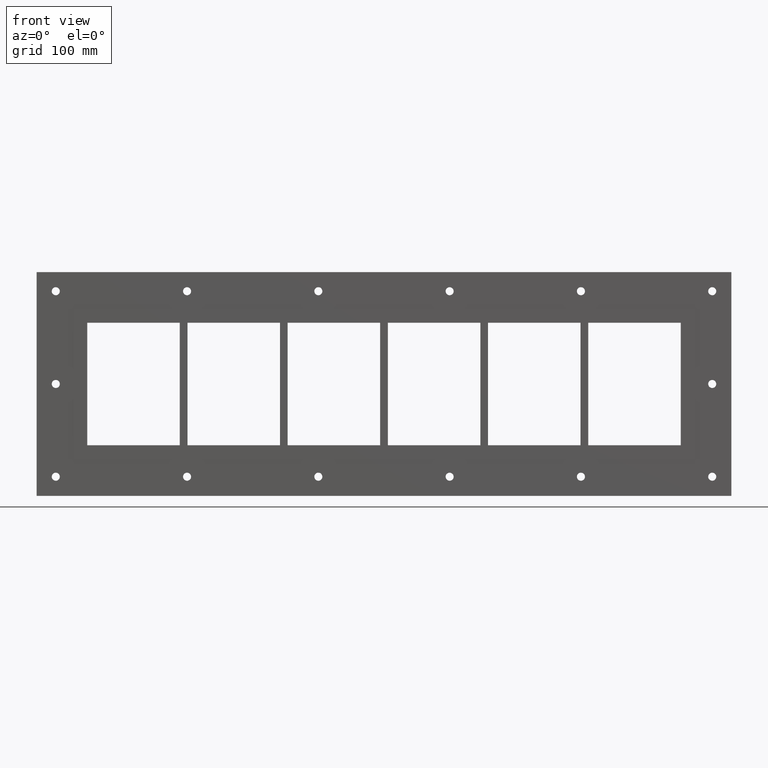
[diagram: clean part render]
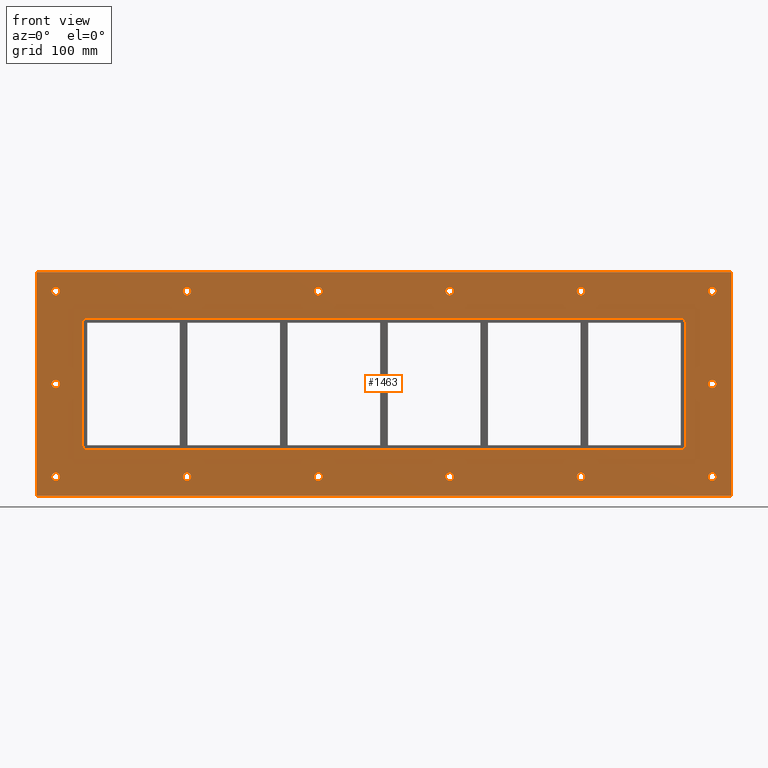
[diagram: same view with one face highlighted and labeled with its STEP entity id]
A machine part, front view. The second image highlights one B-rep face of the part: STEP entity #1463.
In plain terms, the highlighted planar face has unit normal (0, 1, 0).
Its self-contained STEP definition (entity closure, byte-faithful):
#84=CARTESIAN_POINT('',(-422.25000000000034,0.0,-120.75));
#85=VERTEX_POINT('',#84);
#86=CARTESIAN_POINT('',(-427.50000000000034,0.0,-120.75));
#87=DIRECTION('',(0.0,1.0,0.0));
#88=DIRECTION('',(1.0,0.0,0.0));
#89=AXIS2_PLACEMENT_3D('',#86,#87,#88);
#90=CIRCLE('',#89,5.25);
#91=EDGE_CURVE('',#85,#85,#90,.T.);
#112=CARTESIAN_POINT('',(432.74999999999966,0.0,0.050000000000008));
#113=VERTEX_POINT('',#112);
#114=CARTESIAN_POINT('',(427.49999999999966,0.0,0.050000000000008));
#115=DIRECTION('',(0.0,1.0,0.0));
#116=DIRECTION('',(1.0,0.0,0.0));
#117=AXIS2_PLACEMENT_3D('',#114,#115,#116);
#118=CIRCLE('',#117,5.25);
#119=EDGE_CURVE('',#113,#113,#118,.T.);
#140=CARTESIAN_POINT('',(-422.25000000000034,0.0,0.050000000000008));
#141=VERTEX_POINT('',#140);
#142=CARTESIAN_POINT('',(-427.50000000000034,0.0,0.050000000000008));
#143=DIRECTION('',(0.0,1.0,0.0));
#144=DIRECTION('',(1.0,0.0,0.0));
#145=AXIS2_PLACEMENT_3D('',#142,#143,#144);
#146=CIRCLE('',#145,5.25);
#147=EDGE_CURVE('',#141,#141,#146,.T.);
#168=CARTESIAN_POINT('',(-251.25000000000043,0.0,120.85000000000001));
#169=VERTEX_POINT('',#168);
#170=CARTESIAN_POINT('',(-256.5000000000004,0.0,120.85000000000001));
#171=DIRECTION('',(0.0,1.0,0.0));
#172=DIRECTION('',(1.0,0.0,0.0));
#173=AXIS2_PLACEMENT_3D('',#170,#171,#172);
#174=CIRCLE('',#173,5.25);
#175=EDGE_CURVE('',#169,#169,#174,.T.);
#196=CARTESIAN_POINT('',(-251.25000000000034,0.0,-120.75));
#197=VERTEX_POINT('',#196);
#198=CARTESIAN_POINT('',(-256.50000000000034,0.0,-120.75));
#199=DIRECTION('',(0.0,1.0,0.0));
#200=DIRECTION('',(1.0,0.0,0.0));
#201=AXIS2_PLACEMENT_3D('',#198,#199,#200);
#202=CIRCLE('',#201,5.25);
#203=EDGE_CURVE('',#197,#197,#202,.T.);
#224=CARTESIAN_POINT('',(-80.250000000000412,0.0,120.85000000000001));
#225=VERTEX_POINT('',#224);
#226=CARTESIAN_POINT('',(-85.500000000000398,0.0,120.85000000000001));
#227=DIRECTION('',(0.0,1.0,0.0));
#228=DIRECTION('',(1.0,0.0,0.0));
#229=AXIS2_PLACEMENT_3D('',#226,#227,#228);
#230=CIRCLE('',#229,5.25);
#231=EDGE_CURVE('',#225,#225,#230,.T.);
#252=CARTESIAN_POINT('',(-80.250000000000341,0.0,-120.75));
#253=VERTEX_POINT('',#252);
#254=CARTESIAN_POINT('',(-85.500000000000327,0.0,-120.75));
#255=DIRECTION('',(0.0,1.0,0.0));
#256=DIRECTION('',(1.0,0.0,0.0));
#257=AXIS2_PLACEMENT_3D('',#254,#255,#256);
#258=CIRCLE('',#257,5.25);
#259=EDGE_CURVE('',#253,#253,#258,.T.);
#280=CARTESIAN_POINT('',(90.749999999999602,0.0,120.85000000000001));
#281=VERTEX_POINT('',#280);
#282=CARTESIAN_POINT('',(85.499999999999616,0.0,120.85000000000001));
#283=DIRECTION('',(0.0,1.0,0.0));
#284=DIRECTION('',(1.0,0.0,0.0));
#285=AXIS2_PLACEMENT_3D('',#282,#283,#284);
#286=CIRCLE('',#285,5.25);
#287=EDGE_CURVE('',#281,#281,#286,.T.);
#308=CARTESIAN_POINT('',(90.749999999999673,0.0,-120.75));
#309=VERTEX_POINT('',#308);
#310=CARTESIAN_POINT('',(85.499999999999687,0.0,-120.75));
#311=DIRECTION('',(0.0,1.0,0.0));
#312=DIRECTION('',(1.0,0.0,0.0));
#313=AXIS2_PLACEMENT_3D('',#310,#311,#312);
#314=CIRCLE('',#313,5.25);
#315=EDGE_CURVE('',#309,#309,#314,.T.);
#336=CARTESIAN_POINT('',(261.7499999999996,0.0,120.85000000000001));
#337=VERTEX_POINT('',#336);
#338=CARTESIAN_POINT('',(256.49999999999966,0.0,120.85000000000001));
#339=DIRECTION('',(0.0,1.0,0.0));
#340=DIRECTION('',(1.0,0.0,0.0));
#341=AXIS2_PLACEMENT_3D('',#338,#339,#340);
#342=CIRCLE('',#341,5.25);
#343=EDGE_CURVE('',#337,#337,#342,.T.);
#364=CARTESIAN_POINT('',(261.74999999999966,0.0,-120.75));
#365=VERTEX_POINT('',#364);
#366=CARTESIAN_POINT('',(256.49999999999972,0.0,-120.75));
#367=DIRECTION('',(0.0,1.0,0.0));
#368=DIRECTION('',(1.0,0.0,0.0));
#369=AXIS2_PLACEMENT_3D('',#366,#367,#368);
#370=CIRCLE('',#369,5.25);
#371=EDGE_CURVE('',#365,#365,#370,.T.);
#392=CARTESIAN_POINT('',(432.74999999999972,0.0,-120.75));
#393=VERTEX_POINT('',#392);
#394=CARTESIAN_POINT('',(427.49999999999972,0.0,-120.75));
#395=DIRECTION('',(0.0,1.0,0.0));
#396=DIRECTION('',(1.0,0.0,0.0));
#397=AXIS2_PLACEMENT_3D('',#394,#395,#396);
#398=CIRCLE('',#397,5.25);
#399=EDGE_CURVE('',#393,#393,#398,.T.);
#420=CARTESIAN_POINT('',(-422.25000000000034,0.0,120.85000000000001));
#421=VERTEX_POINT('',#420);
#422=CARTESIAN_POINT('',(-427.50000000000034,0.0,120.85000000000001));
#423=DIRECTION('',(0.0,1.0,0.0));
#424=DIRECTION('',(1.0,0.0,0.0));
#425=AXIS2_PLACEMENT_3D('',#422,#423,#424);
#426=CIRCLE('',#425,5.25);
#427=EDGE_CURVE('',#421,#421,#426,.T.);
#448=CARTESIAN_POINT('',(432.74999999999966,0.0,120.85000000000001));
#449=VERTEX_POINT('',#448);
#450=CARTESIAN_POINT('',(427.49999999999966,0.0,120.85000000000001));
#451=DIRECTION('',(0.0,1.0,0.0));
#452=DIRECTION('',(1.0,0.0,0.0));
#453=AXIS2_PLACEMENT_3D('',#450,#451,#452);
#454=CIRCLE('',#453,5.25);
#455=EDGE_CURVE('',#449,#449,#454,.T.);
#1312=CARTESIAN_POINT('',(-3.563106E-014,0.0,7.126212E-015));
#1313=DIRECTION('',(0.0,1.0,0.0));
#1314=DIRECTION('',(0.0,0.0,1.0));
#1315=AXIS2_PLACEMENT_3D('',#1312,#1313,#1314);
#1316=PLANE('',#1315);
#1317=CARTESIAN_POINT('',(-452.50000000000011,0.0,145.75));
#1318=VERTEX_POINT('',#1317);
#1319=CARTESIAN_POINT('',(452.50000000000006,0.0,145.75));
#1320=VERTEX_POINT('',#1319);
#1321=CARTESIAN_POINT('',(-452.50000000000011,0.0,145.75));
#1322=DIRECTION('',(1.0,0.0,0.0));
#1323=VECTOR('',#1322,905.00000000000023);
#1324=LINE('',#1321,#1323);
#1325=EDGE_CURVE('',#1318,#1320,#1324,.T.);
#1326=ORIENTED_EDGE('',*,*,#1325,.F.);
#1327=CARTESIAN_POINT('',(-452.50000000000011,0.0,-145.75));
#1328=VERTEX_POINT('',#1327);
#1329=CARTESIAN_POINT('',(-452.50000000000011,0.0,-145.75));
#1330=DIRECTION('',(0.0,0.0,1.0));
#1331=VECTOR('',#1330,291.5);
#1332=LINE('',#1329,#1331);
#1333=EDGE_CURVE('',#1328,#1318,#1332,.T.);
#1334=ORIENTED_EDGE('',*,*,#1333,.F.);
#1335=CARTESIAN_POINT('',(452.50000000000006,0.0,-145.75));
#1336=VERTEX_POINT('',#1335);
#1337=CARTESIAN_POINT('',(452.50000000000006,0.0,-145.75));
#1338=DIRECTION('',(-1.0,0.0,0.0));
#1339=VECTOR('',#1338,905.00000000000023);
#1340=LINE('',#1337,#1339);
#1341=EDGE_CURVE('',#1336,#1328,#1340,.T.);
#1342=ORIENTED_EDGE('',*,*,#1341,.F.);
#1343=CARTESIAN_POINT('',(452.50000000000006,0.0,145.75));
#1344=DIRECTION('',(0.0,0.0,-1.0));
#1345=VECTOR('',#1344,291.5);
#1346=LINE('',#1343,#1345);
#1347=EDGE_CURVE('',#1320,#1336,#1346,.T.);
#1348=ORIENTED_EDGE('',*,*,#1347,.F.);
#1349=EDGE_LOOP('',(#1326,#1334,#1342,#1348));
#1350=FACE_OUTER_BOUND('',#1349,.T.);
#1351=ORIENTED_EDGE('',*,*,#91,.T.);
#1352=EDGE_LOOP('',(#1351));
#1353=FACE_BOUND('',#1352,.T.);
#1354=ORIENTED_EDGE('',*,*,#119,.T.);
#1355=EDGE_LOOP('',(#1354));
#1356=FACE_BOUND('',#1355,.T.);
#1357=ORIENTED_EDGE('',*,*,#147,.T.);
#1358=EDGE_LOOP('',(#1357));
#1359=FACE_BOUND('',#1358,.T.);
#1360=ORIENTED_EDGE('',*,*,#175,.T.);
#1361=EDGE_LOOP('',(#1360));
#1362=FACE_BOUND('',#1361,.T.);
#1363=ORIENTED_EDGE('',*,*,#203,.T.);
#1364=EDGE_LOOP('',(#1363));
#1365=FACE_BOUND('',#1364,.T.);
#1366=ORIENTED_EDGE('',*,*,#231,.T.);
#1367=EDGE_LOOP('',(#1366));
#1368=FACE_BOUND('',#1367,.T.);
#1369=ORIENTED_EDGE('',*,*,#259,.T.);
#1370=EDGE_LOOP('',(#1369));
#1371=FACE_BOUND('',#1370,.T.);
#1372=ORIENTED_EDGE('',*,*,#287,.T.);
#1373=EDGE_LOOP('',(#1372));
#1374=FACE_BOUND('',#1373,.T.);
#1375=ORIENTED_EDGE('',*,*,#315,.T.);
#1376=EDGE_LOOP('',(#1375));
#1377=FACE_BOUND('',#1376,.T.);
#1378=ORIENTED_EDGE('',*,*,#343,.T.);
#1379=EDGE_LOOP('',(#1378));
#1380=FACE_BOUND('',#1379,.T.);
#1381=ORIENTED_EDGE('',*,*,#371,.T.);
#1382=EDGE_LOOP('',(#1381));
#1383=FACE_BOUND('',#1382,.T.);
#1384=ORIENTED_EDGE('',*,*,#399,.T.);
#1385=EDGE_LOOP('',(#1384));
#1386=FACE_BOUND('',#1385,.T.);
#1387=ORIENTED_EDGE('',*,*,#427,.T.);
#1388=EDGE_LOOP('',(#1387));
#1389=FACE_BOUND('',#1388,.T.);
#1390=ORIENTED_EDGE('',*,*,#455,.T.);
#1391=EDGE_LOOP('',(#1390));
#1392=FACE_BOUND('',#1391,.T.);
#1393=CARTESIAN_POINT('',(-392.50000000000006,0.0,-79.750000000000028));
#1394=VERTEX_POINT('',#1393);
#1395=CARTESIAN_POINT('',(-386.50000000000006,0.0,-85.750000000000028));
#1396=VERTEX_POINT('',#1395);
#1397=CARTESIAN_POINT('',(-386.50000000000006,0.0,-79.750000000000028));
#1398=DIRECTION('',(0.0,-1.0,0.0));
#1399=DIRECTION('',(-0.707106781186544,0.0,-0.707106781186551));
#1400=AXIS2_PLACEMENT_3D('',#1397,#1398,#1399);
#1401=CIRCLE('',#1400,6.0);
#1402=EDGE_CURVE('',#1394,#1396,#1401,.T.);
#1403=ORIENTED_EDGE('',*,*,#1402,.F.);
#1404=CARTESIAN_POINT('',(-392.50000000000006,0.0,79.750000000000028));
#1405=VERTEX_POINT('',#1404);
#1406=CARTESIAN_POINT('',(-392.50000000000006,0.0,79.750000000000014));
#1407=DIRECTION('',(0.0,0.0,-1.0));
#1408=VECTOR('',#1407,159.50000000000006);
#1409=LINE('',#1406,#1408);
#1410=EDGE_CURVE('',#1405,#1394,#1409,.T.);
#1411=ORIENTED_EDGE('',*,*,#1410,.F.);
#1412=CARTESIAN_POINT('',(-386.50000000000006,0.0,85.750000000000028));
#1413=VERTEX_POINT('',#1412);
#1414=CARTESIAN_POINT('',(-386.50000000000006,0.0,79.750000000000028));
#1415=DIRECTION('',(0.0,-1.0,0.0));
#1416=DIRECTION('',(-0.707106781186544,0.0,0.707106781186551));
#1417=AXIS2_PLACEMENT_3D('',#1414,#1415,#1416);
#1418=CIRCLE('',#1417,6.0);
#1419=EDGE_CURVE('',#1413,#1405,#1418,.T.);
#1420=ORIENTED_EDGE('',*,*,#1419,.F.);
#1421=CARTESIAN_POINT('',(386.50000000000011,0.0,85.750000000000028));
#1422=VERTEX_POINT('',#1421);
#1423=CARTESIAN_POINT('',(386.50000000000017,0.0,85.750000000000028));
#1424=DIRECTION('',(-1.0,0.0,0.0));
#1425=VECTOR('',#1424,773.00000000000023);
#1426=LINE('',#1423,#1425);
#1427=EDGE_CURVE('',#1422,#1413,#1426,.T.);
#1428=ORIENTED_EDGE('',*,*,#1427,.F.);
#1429=CARTESIAN_POINT('',(392.50000000000011,0.0,79.750000000000028));
#1430=VERTEX_POINT('',#1429);
#1431=CARTESIAN_POINT('',(386.50000000000011,0.0,79.750000000000028));
#1432=DIRECTION('',(0.0,-1.0,0.0));
#1433=DIRECTION('',(0.707106781186554,0.0,0.707106781186541));
#1434=AXIS2_PLACEMENT_3D('',#1431,#1432,#1433);
#1435=CIRCLE('',#1434,6.0);
#1436=EDGE_CURVE('',#1430,#1422,#1435,.T.);
#1437=ORIENTED_EDGE('',*,*,#1436,.F.);
#1438=CARTESIAN_POINT('',(392.50000000000011,0.0,-79.750000000000028));
#1439=VERTEX_POINT('',#1438);
#1440=CARTESIAN_POINT('',(392.50000000000011,0.0,-79.750000000000014));
#1441=DIRECTION('',(0.0,0.0,1.0));
#1442=VECTOR('',#1441,159.50000000000006);
#1443=LINE('',#1440,#1442);
#1444=EDGE_CURVE('',#1439,#1430,#1443,.T.);
#1445=ORIENTED_EDGE('',*,*,#1444,.F.);
#1446=CARTESIAN_POINT('',(386.50000000000023,0.0,-85.750000000000028));
#1447=VERTEX_POINT('',#1446);
#1448=CARTESIAN_POINT('',(386.50000000000023,0.0,-79.750000000000028));
#1449=DIRECTION('',(0.0,-1.0,0.0));
#1450=DIRECTION('',(0.707106781186544,0.0,-0.707106781186551));
#1451=AXIS2_PLACEMENT_3D('',#1448,#1449,#1450);
#1452=CIRCLE('',#1451,6.0);
#1453=EDGE_CURVE('',#1447,#1439,#1452,.T.);
#1454=ORIENTED_EDGE('',*,*,#1453,.F.);
#1455=CARTESIAN_POINT('',(-386.5,0.0,-85.750000000000028));
#1456=DIRECTION('',(1.0,0.0,0.0));
#1457=VECTOR('',#1456,773.00000000000023);
#1458=LINE('',#1455,#1457);
#1459=EDGE_CURVE('',#1396,#1447,#1458,.T.);
#1460=ORIENTED_EDGE('',*,*,#1459,.F.);
#1461=EDGE_LOOP('',(#1403,#1411,#1420,#1428,#1437,#1445,#1454,#1460));
#1462=FACE_BOUND('',#1461,.T.);
#1463=ADVANCED_FACE('',(#1350,#1353,#1356,#1359,#1362,#1365,#1368,#1371,#1374,#1377,#1380,#1383,#1386,#1389,#1392,#1462),#1316,.F.);